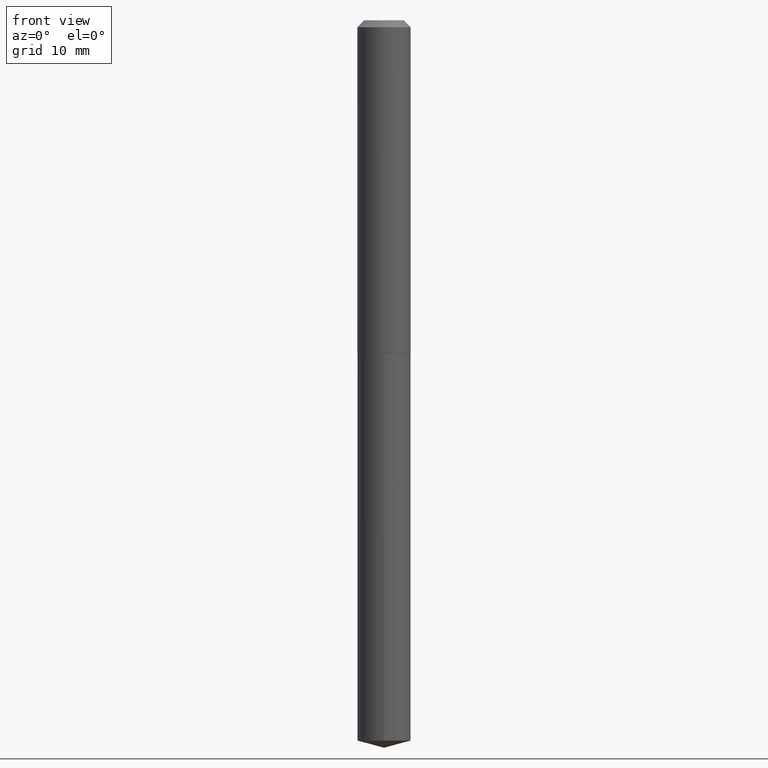
[diagram: clean part render]
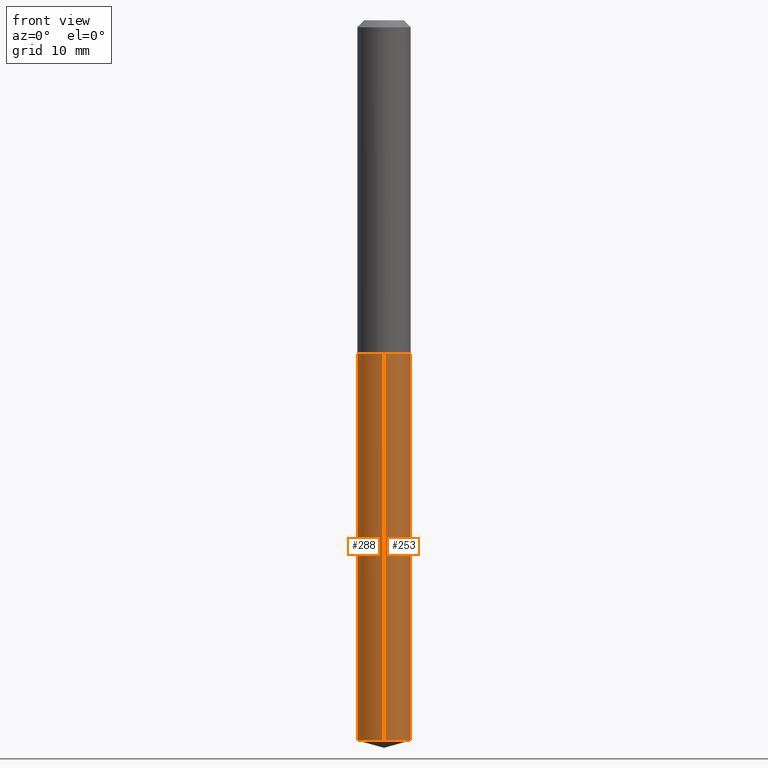
[diagram: same view with one multi-face feature highlighted, each face labeled with its STEP entity id]
A machine part, front view. The highlighted faces form ONE feature: a constant-radius fillet chain: 2 tangent blend faces with common blend radius 3.0226 mm. The faces share edges in the B-rep.
Their STEP definitions:
[1] entity #253 (Cylinder):
#13 = CARTESIAN_POINT ( 'NONE',  ( -8.309725586446292892E-16, -0.1190000000000051988, -1.487999999999999545 ) ) ;
#15 = VERTEX_POINT ( 'NONE', #226 ) ;
#16 = VERTEX_POINT ( 'NONE', #169 ) ;
#19 = LINE ( 'NONE', #13, #366 ) ;
#43 = EDGE_CURVE ( 'NONE', #168, #15, #374, .T. ) ;
#60 = EDGE_LOOP ( 'NONE', ( #67, #140, #371, #304 ) ) ;
#67 = ORIENTED_EDGE ( 'NONE', *, *, #127, .T. ) ;
#75 = DIRECTION ( 'NONE',  ( -2.439623832535255170E-29, 3.499851673785016113E-15, 1.000000000000000000 ) ) ;
#78 = EDGE_CURVE ( 'NONE', #213, #16, #19, .T. ) ;
#80 = DIRECTION ( 'NONE',  ( -6.982962677686265922E-15, -1.000000000000000000, 4.591341165822290427E-15 ) ) ;
#84 = EDGE_CURVE ( 'NONE', #16, #15, #251, .T. ) ;
#127 = EDGE_CURVE ( 'NONE', #213, #168, #170, .T. ) ;
#140 = ORIENTED_EDGE ( 'NONE', *, *, #43, .T. ) ;
#144 = CYLINDRICAL_SURFACE ( 'NONE', #292, 0.1190000000000000085 ) ;
#164 = CARTESIAN_POINT ( 'NONE',  ( 8.455458555545555695E-16, 0.1189999999999948183, -1.488000000000000655 ) ) ;
#168 = VERTEX_POINT ( 'NONE', #293 ) ;
#169 = CARTESIAN_POINT ( 'NONE',  ( -8.309725586446291906E-16, -0.1190000000000051850, -1.487999999999999545 ) ) ;
#170 = CIRCLE ( 'NONE', #382, 0.1190000000000000085 ) ;
#193 = CARTESIAN_POINT ( 'NONE',  ( 3.638857583603483825E-29, -5.195324232198600513E-15, -1.487999999999999989 ) ) ;
#196 = DIRECTION ( 'NONE',  ( -6.982962677686265922E-15, -1.000000000000000000, 4.591341165822291216E-15 ) ) ;
#200 = DIRECTION ( 'NONE',  ( -2.439623832535255170E-29, 3.499851673785016113E-15, 1.000000000000000000 ) ) ;
#213 = VERTEX_POINT ( 'NONE', #354 ) ;
#226 = CARTESIAN_POINT ( 'NONE',  ( 8.455458555545980694E-16, 0.1189999999999947905, -1.488000000000000655 ) ) ;
#249 = DIRECTION ( 'NONE',  ( -6.982962677686265922E-15, -1.000000000000000000, 4.591341165822290427E-15 ) ) ;
#251 = CIRCLE ( 'NONE', #295, 0.1189999999999999947 ) ;
#253 = ADVANCED_FACE ( 'NONE', ( #264 ), #144, .T. ) ;
#255 = DIRECTION ( 'NONE',  ( -2.439623832535255170E-29, 3.499851673785016113E-15, 1.000000000000000000 ) ) ;
#264 = FACE_OUTER_BOUND ( 'NONE', #60, .T. ) ;
#273 = CARTESIAN_POINT ( 'NONE',  ( 7.859685043474742912E-29, -1.125046677228309181E-14, -3.218114046100696957 ) ) ;
#292 = AXIS2_PLACEMENT_3D ( 'NONE', #380, #325, #80 ) ;
#293 = CARTESIAN_POINT ( 'NONE',  ( 8.455458555545976750E-16, 0.1189999999999887259, -3.218114046100697401 ) ) ;
#295 = AXIS2_PLACEMENT_3D ( 'NONE', #193, #75, #196 ) ;
#304 = ORIENTED_EDGE ( 'NONE', *, *, #78, .F. ) ;
#325 = DIRECTION ( 'NONE',  ( -2.439623832535255170E-29, 3.499851673785016113E-15, 1.000000000000000000 ) ) ;
#337 = DIRECTION ( 'NONE',  ( -2.439623832535255170E-29, 3.499851673785016113E-15, 1.000000000000000000 ) ) ;
#344 = VECTOR ( 'NONE', #200, 39.37007874015748143 ) ;
#354 = CARTESIAN_POINT ( 'NONE',  ( -8.309725586445868880E-16, -0.1190000000000112357, -3.218114046100696513 ) ) ;
#366 = VECTOR ( 'NONE', #255, 39.37007874015748143 ) ;
#371 = ORIENTED_EDGE ( 'NONE', *, *, #84, .F. ) ;
#374 = LINE ( 'NONE', #164, #344 ) ;
#380 = CARTESIAN_POINT ( 'NONE',  ( 3.638857583603483825E-29, -5.195324232198600513E-15, -1.487999999999999989 ) ) ;
#382 = AXIS2_PLACEMENT_3D ( 'NONE', #273, #337, #249 ) ;
[2] entity #288 (Cylinder):
#13 = CARTESIAN_POINT ( 'NONE',  ( -8.309725586446292892E-16, -0.1190000000000051988, -1.487999999999999545 ) ) ;
#15 = VERTEX_POINT ( 'NONE', #226 ) ;
#16 = VERTEX_POINT ( 'NONE', #169 ) ;
#19 = LINE ( 'NONE', #13, #366 ) ;
#33 = ORIENTED_EDGE ( 'NONE', *, *, #359, .F. ) ;
#41 = DIRECTION ( 'NONE',  ( -2.439623832535255170E-29, 3.499851673785016113E-15, 1.000000000000000000 ) ) ;
#43 = EDGE_CURVE ( 'NONE', #168, #15, #374, .T. ) ;
#64 = ORIENTED_EDGE ( 'NONE', *, *, #384, .T. ) ;
#69 = AXIS2_PLACEMENT_3D ( 'NONE', #353, #180, #266 ) ;
#78 = EDGE_CURVE ( 'NONE', #213, #16, #19, .T. ) ;
#119 = FACE_OUTER_BOUND ( 'NONE', #389, .T. ) ;
#154 = DIRECTION ( 'NONE',  ( -6.982962677686265922E-15, -1.000000000000000000, 4.591341165822290427E-15 ) ) ;
#156 = CIRCLE ( 'NONE', #296, 0.1190000000000000085 ) ;
#159 = CARTESIAN_POINT ( 'NONE',  ( 7.859685043474742912E-29, -1.125046677228309181E-14, -3.218114046100696957 ) ) ;
#164 = CARTESIAN_POINT ( 'NONE',  ( 8.455458555545555695E-16, 0.1189999999999948183, -1.488000000000000655 ) ) ;
#168 = VERTEX_POINT ( 'NONE', #293 ) ;
#169 = CARTESIAN_POINT ( 'NONE',  ( -8.309725586446291906E-16, -0.1190000000000051850, -1.487999999999999545 ) ) ;
#180 = DIRECTION ( 'NONE',  ( -2.439623832535255170E-29, 3.499851673785016113E-15, 1.000000000000000000 ) ) ;
#182 = DIRECTION ( 'NONE',  ( -6.982962677686265922E-15, -1.000000000000000000, 4.591341165822291216E-15 ) ) ;
#183 = CIRCLE ( 'NONE', #388, 0.1189999999999999947 ) ;
#200 = DIRECTION ( 'NONE',  ( -2.439623832535255170E-29, 3.499851673785016113E-15, 1.000000000000000000 ) ) ;
#213 = VERTEX_POINT ( 'NONE', #354 ) ;
#219 = DIRECTION ( 'NONE',  ( -2.439623832535255170E-29, 3.499851673785016113E-15, 1.000000000000000000 ) ) ;
#226 = CARTESIAN_POINT ( 'NONE',  ( 8.455458555545980694E-16, 0.1189999999999947905, -1.488000000000000655 ) ) ;
#255 = DIRECTION ( 'NONE',  ( -2.439623832535255170E-29, 3.499851673785016113E-15, 1.000000000000000000 ) ) ;
#266 = DIRECTION ( 'NONE',  ( -6.982962677686265922E-15, -1.000000000000000000, 4.591341165822290427E-15 ) ) ;
#288 = ADVANCED_FACE ( 'NONE', ( #119 ), #378, .T. ) ;
#293 = CARTESIAN_POINT ( 'NONE',  ( 8.455458555545976750E-16, 0.1189999999999887259, -3.218114046100697401 ) ) ;
#296 = AXIS2_PLACEMENT_3D ( 'NONE', #159, #219, #154 ) ;
#297 = ORIENTED_EDGE ( 'NONE', *, *, #43, .F. ) ;
#329 = ORIENTED_EDGE ( 'NONE', *, *, #78, .T. ) ;
#344 = VECTOR ( 'NONE', #200, 39.37007874015748143 ) ;
#352 = CARTESIAN_POINT ( 'NONE',  ( 3.638857583603483825E-29, -5.195324232198600513E-15, -1.487999999999999989 ) ) ;
#353 = CARTESIAN_POINT ( 'NONE',  ( 3.638857583603483825E-29, -5.195324232198600513E-15, -1.487999999999999989 ) ) ;
#354 = CARTESIAN_POINT ( 'NONE',  ( -8.309725586445868880E-16, -0.1190000000000112357, -3.218114046100696513 ) ) ;
#359 = EDGE_CURVE ( 'NONE', #15, #16, #183, .T. ) ;
#366 = VECTOR ( 'NONE', #255, 39.37007874015748143 ) ;
#374 = LINE ( 'NONE', #164, #344 ) ;
#378 = CYLINDRICAL_SURFACE ( 'NONE', #69, 0.1190000000000000085 ) ;
#384 = EDGE_CURVE ( 'NONE', #168, #213, #156, .T. ) ;
#388 = AXIS2_PLACEMENT_3D ( 'NONE', #352, #41, #182 ) ;
#389 = EDGE_LOOP ( 'NONE', ( #297, #64, #329, #33 ) ) ;